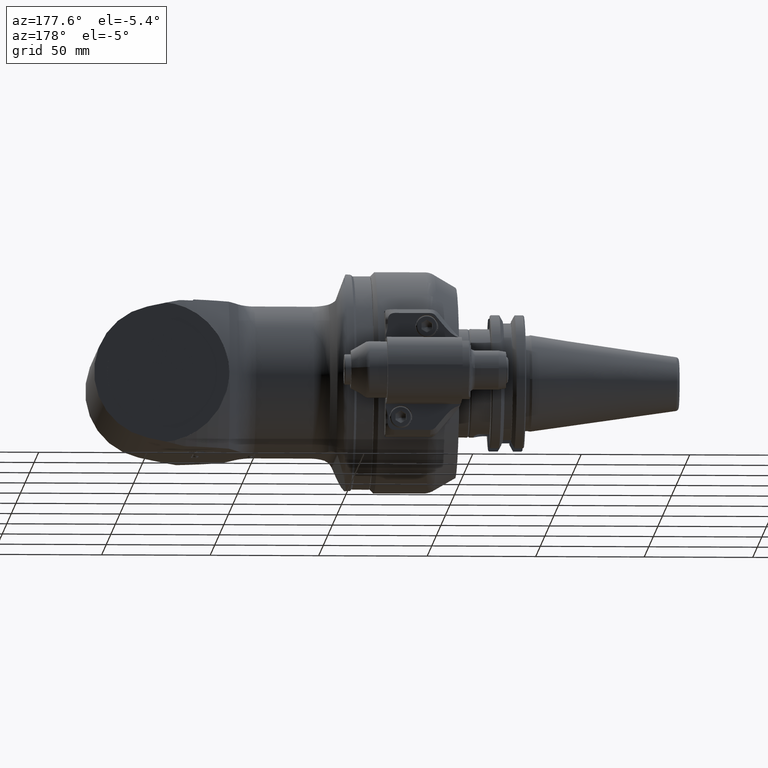
[diagram: clean part render]
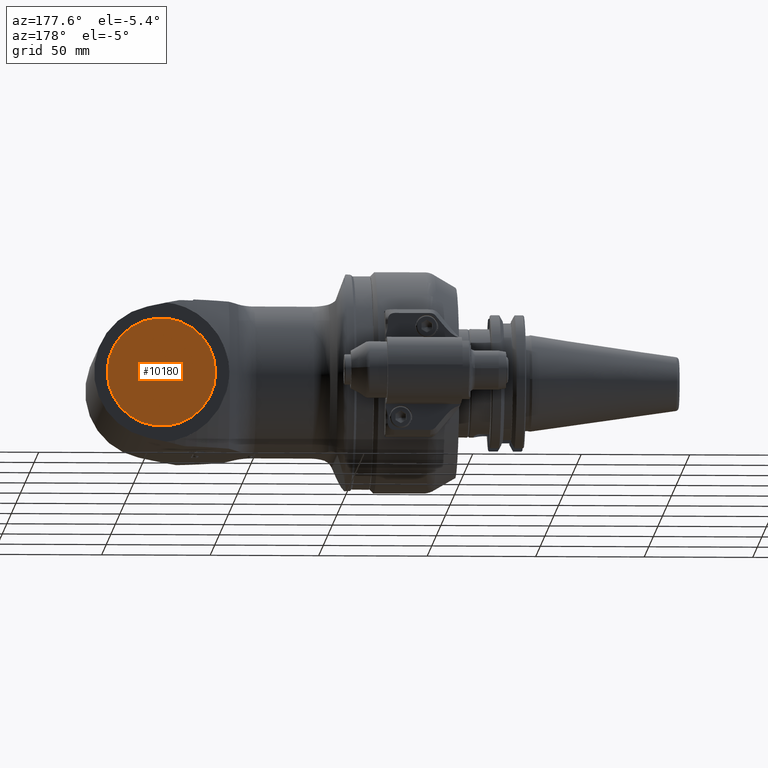
[diagram: same view with one face highlighted and labeled with its STEP entity id]
A machine part, auxiliary view. The second image highlights one B-rep face of the part: STEP entity #10180.
In plain terms, the highlighted planar face has unit normal (-0, 1, 0).
Its self-contained STEP definition (entity closure, byte-faithful):
#2385=FACE_OUTER_BOUND('',#2941,.T.);
#2941=EDGE_LOOP('',(#6721));
#3574=CIRCLE('',#10798,25.);
#3988=VERTEX_POINT('',#14482);
#5116=EDGE_CURVE('',#3988,#3988,#3574,.T.);
#6721=ORIENTED_EDGE('',*,*,#5116,.T.);
#9919=PLANE('',#10799);
#10180=ADVANCED_FACE('',(#2385),#9919,.T.);
#10798=AXIS2_PLACEMENT_3D('',#14483,#11770,#11771);
#10799=AXIS2_PLACEMENT_3D('',#14485,#11773,#11774);
#11770=DIRECTION('center_axis',(0.,1.,0.));
#11771=DIRECTION('ref_axis',(-1.,0.,0.));
#11773=DIRECTION('center_axis',(0.,1.,0.));
#11774=DIRECTION('ref_axis',(-1.,0.,0.));
#14482=CARTESIAN_POINT('',(303.063097,49.2,-3.06161699786838E-15));
#14483=CARTESIAN_POINT('Origin',(278.063097,49.2,0.));
#14485=CARTESIAN_POINT('Origin',(0.,49.2,0.));